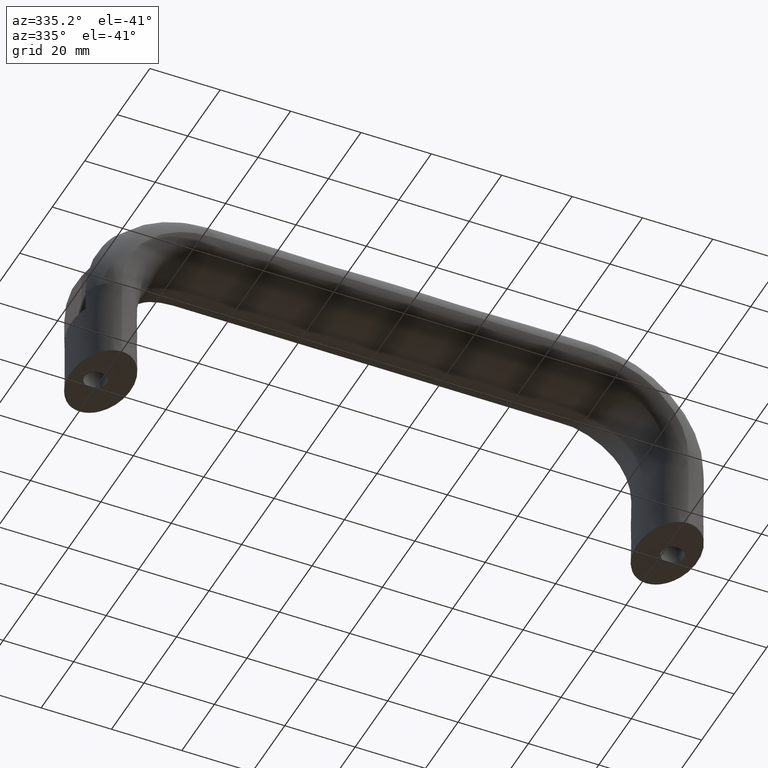
[diagram: clean part render]
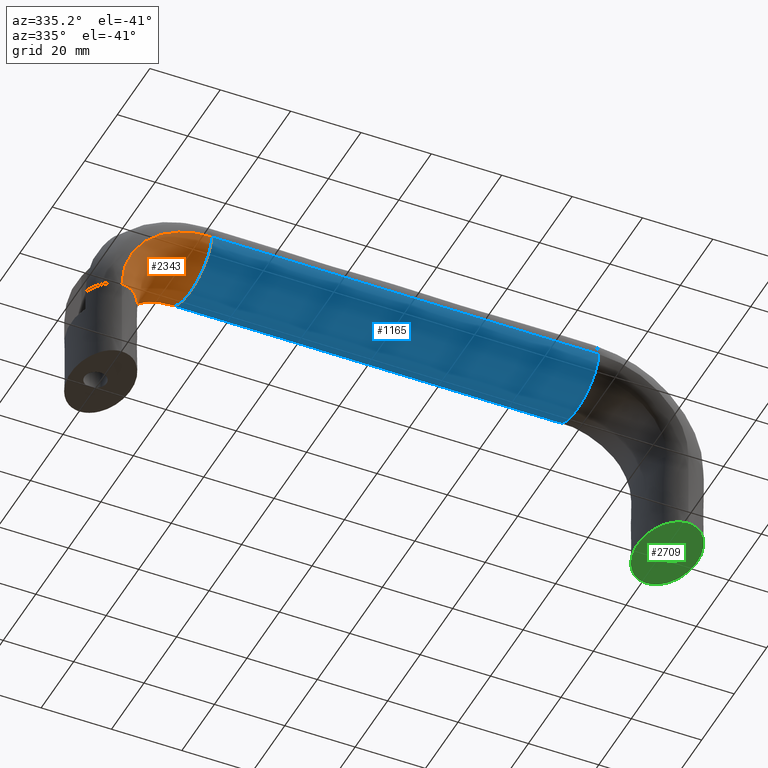
[diagram: same view with three faces highlighted in distinct colors, each labeled with its STEP entity id]
A machine part, auxiliary view with three faces highlighted in distinct colors.
Their STEP definitions:

[orange] entity #2343 — the highlighted face is a freeform B-spline surface patch.
#1004=CARTESIAN_POINT('',(27.0,10.975623890149990,43.945765449547203));
#1005=VERTEX_POINT('',#1004);
#1013=CARTESIAN_POINT('',(27.0,13.0,48.499999999999851));
#1014=VERTEX_POINT('',#1013);
#1015=CARTESIAN_POINT('',(27.0,10.975623890149990,43.945765449547203));
#1016=CARTESIAN_POINT('',(27.0,11.376905334614770,44.359070101473321));
#1017=CARTESIAN_POINT('',(27.0,11.723903875047570,44.794896195742687));
#1018=CARTESIAN_POINT('',(27.0,12.661644796688099,46.275142982946001));
#1019=CARTESIAN_POINT('',(27.0,13.0,47.387352601853507));
#1020=CARTESIAN_POINT('',(27.0,13.0,48.499999999999851));
#1021=B_SPLINE_CURVE_WITH_KNOTS('',3,(#1015,#1016,#1017,#1018,#1019,#1020),.UNSPECIFIED.,.F.,.U.,(4,2,4),(0.410000262681718,0.437500000000000,0.500000000000000),.UNSPECIFIED.);
#1022=EDGE_CURVE('',#1005,#1014,#1021,.T.);
#1024=CARTESIAN_POINT('',(27.0,11.762630262052349,52.119074295047028));
#1025=VERTEX_POINT('',#1024);
#1026=CARTESIAN_POINT('',(27.0,13.0,48.499999999999851));
#1027=CARTESIAN_POINT('',(27.0,13.0,49.612647398146201));
#1028=CARTESIAN_POINT('',(27.0,12.661644796688099,50.724857017053687));
#1029=CARTESIAN_POINT('',(27.0,11.932288617735150,51.876163434111042));
#1030=CARTESIAN_POINT('',(27.0,11.849645570403720,51.998292737369773));
#1031=CARTESIAN_POINT('',(27.0,11.762630262052349,52.119074295047028));
#1032=B_SPLINE_CURVE_WITH_KNOTS('',3,(#1026,#1027,#1028,#1029,#1030,#1031),.UNSPECIFIED.,.F.,.U.,(4,2,4),(0.500000000000000,0.562500000000000,0.570000000002555),.UNSPECIFIED.);
#1033=EDGE_CURVE('',#1014,#1025,#1032,.T.);
#1035=CARTESIAN_POINT('',(27.0,-13.0,48.499999999999851));
#1036=VERTEX_POINT('',#1035);
#1147=CARTESIAN_POINT('',(27.0,-13.0,48.499999999999851));
#1148=CARTESIAN_POINT('',(27.0,-13.0,47.387352601853507));
#1149=CARTESIAN_POINT('',(27.0,-12.661644796688099,46.275142982946001));
#1150=CARTESIAN_POINT('',(27.0,-11.359223048605340,44.219238666847197));
#1151=CARTESIAN_POINT('',(27.0,-10.395668951176340,43.276352880213047));
#1152=CARTESIAN_POINT('',(27.0,-6.785826563922671,40.916071319316451));
#1153=CARTESIAN_POINT('',(27.0,-3.403392041388941,40.0));
#1154=CARTESIAN_POINT('',(27.0,3.403392041388945,40.0));
#1155=CARTESIAN_POINT('',(27.0,6.785826563922680,40.916071319316451));
#1156=CARTESIAN_POINT('',(27.0,9.866230458323667,42.930181557963273));
#1157=CARTESIAN_POINT('',(27.0,10.464893340169100,43.419732374459457));
#1158=CARTESIAN_POINT('',(27.0,10.975623890149990,43.945765449547203));
#1159=B_SPLINE_CURVE_WITH_KNOTS('',3,(#1147,#1148,#1149,#1150,#1151,#1152,#1153,#1154,#1155,#1156,#1157,#1158),.UNSPECIFIED.,.F.,.U.,(4,2,2,2,2,4),(0.0,0.062500000000000,0.125000000000000,0.250000000000000,0.375000000000000,0.410000262681718),.UNSPECIFIED.);
#1160=EDGE_CURVE('',#1036,#1005,#1159,.T.);
#1962=CARTESIAN_POINT('',(-2.119061428359717,11.762639531628810,23.0));
#1963=VERTEX_POINT('',#1962);
#2082=CARTESIAN_POINT('',(1.500000000000140,-13.0,23.0));
#2083=VERTEX_POINT('',#2082);
#2095=CARTESIAN_POINT('',(1.500000000000154,-13.0,23.0));
#2096=CARTESIAN_POINT('',(1.500032745947582,-13.0,26.338487934503370));
#2097=CARTESIAN_POINT('',(2.163696795463587,-13.0,29.674571173098371));
#2098=CARTESIAN_POINT('',(4.718447046461086,-13.0,35.842283877520977));
#2099=CARTESIAN_POINT('',(6.608495612153591,-13.0,38.670941452671578));
#2100=CARTESIAN_POINT('',(11.329058547332741,-13.0,43.391504387842048));
#2101=CARTESIAN_POINT('',(14.157716122458790,-13.0,45.281552953521953));
#2102=CARTESIAN_POINT('',(20.325428826921950,-13.0,47.836303204553452));
#2103=CARTESIAN_POINT('',(23.661512065481379,-13.0,48.499967254052613));
#2104=CARTESIAN_POINT('',(27.0,-13.0,48.499999999999851));
#2105=B_SPLINE_CURVE_WITH_KNOTS('',3,(#2095,#2096,#2097,#2098,#2099,#2100,#2101,#2102,#2103,#2104),.UNSPECIFIED.,.F.,.U.,(4,2,2,2,4),(0.097411970348334,0.139823560705181,0.182235151062028,0.224646741418875,0.267058331775723),.UNSPECIFIED.);
#2106=EDGE_CURVE('',#2083,#1036,#2105,.T.);
#2109=CARTESIAN_POINT('',(-2.119061428359717,11.762639531628810,23.0));
#2110=CARTESIAN_POINT('',(-2.119022407721757,11.762638924830910,26.812301103459479));
#2111=CARTESIAN_POINT('',(-1.361171660239219,11.762638197851629,30.621856230460349));
#2112=CARTESIAN_POINT('',(1.556157996607505,11.762636612488160,37.664918366565928));
#2113=CARTESIAN_POINT('',(3.714449535768110,11.762635754833109,40.895031703267279));
#2114=CARTESIAN_POINT('',(9.104973539139522,11.762634038848050,46.285558088512403));
#2115=CARTESIAN_POINT('',(12.335085685348011,11.762633181192999,48.443850818134713));
#2116=CARTESIAN_POINT('',(19.378145620912111,11.762631595829530,51.361182675585340));
#2117=CARTESIAN_POINT('',(23.187699738797981,11.762630868850250,52.119034432141987));
#2118=CARTESIAN_POINT('',(27.0,11.762630262052349,52.119074295047028));
#2119=B_SPLINE_CURVE_WITH_KNOTS('',3,(#2109,#2110,#2111,#2112,#2113,#2114,#2115,#2116,#2117,#2118),.UNSPECIFIED.,.F.,.U.,(4,2,2,2,4),(0.097411970348334,0.139823560705181,0.182235151062028,0.224646741418875,0.267058331775723),.UNSPECIFIED.);
#2120=EDGE_CURVE('',#1963,#1025,#2119,.T.);
#2125=CARTESIAN_POINT('',(1.500000000000154,-13.0,23.0));
#2126=CARTESIAN_POINT('',(2.612647398146540,-13.0,23.0));
#2127=CARTESIAN_POINT('',(3.724857017054041,-12.661644796688099,23.0));
#2128=CARTESIAN_POINT('',(5.780761333152801,-11.359223048605340,23.0));
#2129=CARTESIAN_POINT('',(6.723647119786929,-10.395668951176340,23.0));
#2130=CARTESIAN_POINT('',(9.083928680683561,-6.785826563922671,23.0));
#2131=CARTESIAN_POINT('',(10.000000000000140,-3.403392041388941,23.0));
#2132=CARTESIAN_POINT('',(10.000000000000140,3.403392041388945,23.0));
#2133=CARTESIAN_POINT('',(9.083928680683561,6.785826563922680,23.0));
#2134=CARTESIAN_POINT('',(6.723647119786921,10.395668951176340,23.0));
#2135=CARTESIAN_POINT('',(5.780761333152801,11.359223048605340,23.0));
#2136=CARTESIAN_POINT('',(3.724857017054035,12.661644796688099,23.0));
#2137=CARTESIAN_POINT('',(2.612647398146535,13.0,23.0));
#2138=CARTESIAN_POINT('',(0.387352601853766,13.0,23.0));
#2139=CARTESIAN_POINT('',(-0.724857017053728,12.661644796688099,23.0));
#2140=CARTESIAN_POINT('',(-1.876163434069034,11.932288617761770,23.0));
#2141=CARTESIAN_POINT('',(-1.998292737286579,11.849645570460019,23.0));
#2142=CARTESIAN_POINT('',(-2.119074294985324,11.762630262096810,23.0));
#2143=CARTESIAN_POINT('',(1.500032745947582,-13.0,26.338487934503370));
#2144=CARTESIAN_POINT('',(2.612678002240540,-13.0,26.192818918935149));
#2145=CARTESIAN_POINT('',(3.724885529003480,-12.661644796688099,26.047207217867751));
#2146=CARTESIAN_POINT('',(5.780786073438320,-11.359223048605340,25.778045973692102));
#2147=CARTESIAN_POINT('',(6.723670175547071,-10.395668951176340,25.654602334049951));
#2148=CARTESIAN_POINT('',(9.083947659808640,-6.785826563922671,25.345591687459152));
#2149=CARTESIAN_POINT('',(10.000017456216780,-3.403392041388941,25.225658627134049));
#2150=CARTESIAN_POINT('',(10.000017456216780,3.403392041388945,25.225658627134049));
#2151=CARTESIAN_POINT('',(9.083947659808640,6.785826563922680,25.345591687459152));
#2152=CARTESIAN_POINT('',(6.723670175547071,10.395668951176340,25.654602334050001));
#2153=CARTESIAN_POINT('',(5.780786073438311,11.359223048605340,25.778045973687750));
#2154=CARTESIAN_POINT('',(3.724885529002785,12.661644796688099,26.047207217867751));
#2155=CARTESIAN_POINT('',(2.612678002240535,13.0,26.192818918935149));
#2156=CARTESIAN_POINT('',(0.387387489654623,13.0,26.484156950071601));
#2157=CARTESIAN_POINT('',(-0.724819943463048,12.661644796688099,26.629768651049350));
#2158=CARTESIAN_POINT('',(-1.876124058144919,11.932288617761770,26.780498947608201));
#2159=CARTESIAN_POINT('',(-1.998253116722651,11.849645570460019,26.796488249691439));
#2160=CARTESIAN_POINT('',(-2.119034432082197,11.762630262096810,26.812301103455439));
#2161=CARTESIAN_POINT('',(2.163696795463587,-13.0,29.674571173098371));
#2162=CARTESIAN_POINT('',(3.247384957820375,-13.0,29.383338065282651));
#2163=CARTESIAN_POINT('',(4.330646735161695,-12.661644796688099,29.092219545244848));
#2164=CARTESIAN_POINT('',(6.333041360813120,-11.359223048605340,28.554090930228750));
#2165=CARTESIAN_POINT('',(7.251386352343620,-10.395668951176340,28.307292565875851));
#2166=CARTESIAN_POINT('',(9.550236097229082,-6.785826563922671,27.689493849540050));
#2167=CARTESIAN_POINT('',(10.442464530308380,-3.403392041388941,27.449714115402749));
#2168=CARTESIAN_POINT('',(10.442464530308380,3.403392041388945,27.449714115402749));
#2169=CARTESIAN_POINT('',(9.550236097229082,6.785826563922680,27.689493849540050));
#2170=CARTESIAN_POINT('',(7.251386352343610,10.395668951176340,28.307292565875851));
#2171=CARTESIAN_POINT('',(6.333041360814569,11.359223048605340,28.554090930234551));
#2172=CARTESIAN_POINT('',(4.330646735161690,12.661644796688099,29.092219545244848));
#2173=CARTESIAN_POINT('',(3.247384957820370,13.0,29.383338065282651));
#2174=CARTESIAN_POINT('',(1.080008633106800,13.0,29.965804280914099));
#2175=CARTESIAN_POINT('',(-0.003253144234151,12.661644796688099,30.256922800951902));
#2176=CARTESIAN_POINT('',(-1.124594134599558,11.932288617761770,30.558274825357639));
#2177=CARTESIAN_POINT('',(-1.243544738712080,11.849645570460019,30.590241912676859));
#2178=CARTESIAN_POINT('',(-1.361182675516854,11.762630262096810,30.621856230451471));
#2179=CARTESIAN_POINT('',(4.718447046461086,-13.0,35.842283877520977));
#2180=CARTESIAN_POINT('',(5.690663200203060,-13.0,35.281933534667203));
#2181=CARTESIAN_POINT('',(6.662496828403381,-12.661644796688099,34.721803665759047));
#2182=CARTESIAN_POINT('',(8.458918039642480,-11.359223048605340,33.686411240177350));
#2183=CARTESIAN_POINT('',(9.282798807646131,-10.395668951176340,33.211556066215500));
#2184=CARTESIAN_POINT('',(11.345180712913040,-6.785826563922671,32.022873484407349));
#2185=CARTESIAN_POINT('',(12.145631364308160,-3.403392041388941,31.561522585010099));
#2186=CARTESIAN_POINT('',(12.145631364308160,3.403392041388945,31.561522585010099));
#2187=CARTESIAN_POINT('',(11.345180712913040,6.785826563922680,32.022873484407349));
#2188=CARTESIAN_POINT('',(9.282798807646120,10.395668951176340,33.211556066215500));
#2189=CARTESIAN_POINT('',(8.458918039641020,11.359223048605340,33.686411240171552));
#2190=CARTESIAN_POINT('',(6.662496828403381,12.661644796688099,34.721803665759047));
#2191=CARTESIAN_POINT('',(5.690663200203060,13.0,35.281933534667203));
#2192=CARTESIAN_POINT('',(3.746230892719105,13.0,36.402634220374750));
#2193=CARTESIAN_POINT('',(2.774397264518435,12.661644796688099,36.962764089282949));
#2194=CARTESIAN_POINT('',(1.768401386225149,11.932288617761770,37.542583847611922));
#2195=CARTESIAN_POINT('',(1.661686463212561,11.849645570460019,37.604090482187992));
#2196=CARTESIAN_POINT('',(1.556149181891933,11.762630262096810,37.664918366546502));
#2197=CARTESIAN_POINT('',(6.608495612153591,-13.0,38.670941452671578));
#2198=CARTESIAN_POINT('',(7.498242839660080,-13.0,37.987167639578850));
#2199=CARTESIAN_POINT('',(8.387639989627301,-12.661644796688099,37.303662862276603));
#2200=CARTESIAN_POINT('',(10.031678494834599,-11.359223048605340,36.040213600724357));
#2201=CARTESIAN_POINT('',(10.785672991121199,-10.395668951176340,35.460766229784149));
#2202=CARTESIAN_POINT('',(12.673111885458640,-6.785826563922671,34.010262929685297));
#2203=CARTESIAN_POINT('',(13.405663741437699,-3.403392041388941,33.447294301788752));
#2204=CARTESIAN_POINT('',(13.405663741437699,3.403392041388945,33.447294301788752));
#2205=CARTESIAN_POINT('',(12.673111885458640,6.785826563922680,34.010262929685297));
#2206=CARTESIAN_POINT('',(10.785672991124100,10.395668951176340,35.460766229784149));
#2207=CARTESIAN_POINT('',(10.031678494831700,11.359223048605340,36.040213600712747));
#2208=CARTESIAN_POINT('',(8.387639989627301,12.661644796688099,37.303662862288199));
#2209=CARTESIAN_POINT('',(7.498242839660080,13.0,37.987167639578907));
#2210=CARTESIAN_POINT('',(5.718748384647101,13.0,39.354715265764298));
#2211=CARTESIAN_POINT('',(4.829351234678440,12.661644796688099,40.038220043054999));
#2212=CARTESIAN_POINT('',(3.908689671763977,11.932288617761770,40.745751629530758));
#2213=CARTESIAN_POINT('',(3.811026917942616,11.849645570460019,40.820805792682869));
#2214=CARTESIAN_POINT('',(3.714441911519701,11.762630262096810,40.895031703242132));
#2215=CARTESIAN_POINT('',(11.329058547332741,-13.0,43.391504387842048));
#2216=CARTESIAN_POINT('',(12.012832360423999,-13.0,42.501757160337000));
#2217=CARTESIAN_POINT('',(12.696337137717601,-12.661644796688099,41.612360010378453));
#2218=CARTESIAN_POINT('',(13.959786399278540,-11.359223048605340,39.968321505162500));
#2219=CARTESIAN_POINT('',(14.539233770218740,-10.395668951176340,39.214327008875898));
#2220=CARTESIAN_POINT('',(15.989737070320450,-6.785826563922671,37.326888114535549));
#2221=CARTESIAN_POINT('',(16.552705698219949,-3.403392041388941,36.594336258553597));
#2222=CARTESIAN_POINT('',(16.552705698219949,3.403392041388945,36.594336258553597));
#2223=CARTESIAN_POINT('',(15.989737070320450,6.785826563922680,37.326888114535549));
#2224=CARTESIAN_POINT('',(14.539233770215841,10.395668951176340,39.214327008875898));
#2225=CARTESIAN_POINT('',(13.959786399281439,11.359223048605340,39.968321505174103));
#2226=CARTESIAN_POINT('',(12.696337137717579,12.661644796688099,41.612360010366913));
#2227=CARTESIAN_POINT('',(12.012832360423999,13.0,42.501757160337000));
#2228=CARTESIAN_POINT('',(10.645284734241480,13.0,44.281251615347102));
#2229=CARTESIAN_POINT('',(9.961779956949350,12.661644796688099,45.170648765317203));
#2230=CARTESIAN_POINT('',(9.254248370473590,11.932288617761770,46.091310328231671));
#2231=CARTESIAN_POINT('',(9.179194207321523,11.849645570460019,46.188973082052982));
#2232=CARTESIAN_POINT('',(9.104968296762326,11.762630262096810,46.285558088475817));
#2233=CARTESIAN_POINT('',(14.157716122458790,-13.0,45.281552953521953));
#2234=CARTESIAN_POINT('',(14.718066465303860,-13.0,44.309336799779601));
#2235=CARTESIAN_POINT('',(15.278196334223651,-12.661644796688099,43.337503171574902));
#2236=CARTESIAN_POINT('',(16.313588759811100,-11.359223048605340,41.541081960330047));
#2237=CARTESIAN_POINT('',(16.788443933772950,-10.395668951176340,40.717201192336503));
#2238=CARTESIAN_POINT('',(17.977126515575300,-6.785826563922671,38.654819287069607));
#2239=CARTESIAN_POINT('',(18.438477414972549,-3.403392041388941,37.854368635665800));
#2240=CARTESIAN_POINT('',(18.438477414972549,3.403392041388945,37.854368635665800));
#2241=CARTESIAN_POINT('',(17.977126515575300,6.785826563922680,38.654819287069607));
#2242=CARTESIAN_POINT('',(16.788443933767201,10.395668951176340,40.717201192336503));
#2243=CARTESIAN_POINT('',(16.313588759805299,11.359223048605340,41.541081960341600));
#2244=CARTESIAN_POINT('',(15.278196334223651,12.661644796688099,43.337503171574902));
#2245=CARTESIAN_POINT('',(14.718066465309640,13.0,44.309336799767998));
#2246=CARTESIAN_POINT('',(13.597365779613719,13.0,46.253769107264297));
#2247=CARTESIAN_POINT('',(13.037235910699740,12.661644796688099,47.225602735468897));
#2248=CARTESIAN_POINT('',(12.457416152372380,11.932288617761770,48.231598613759537));
#2249=CARTESIAN_POINT('',(12.395909517796420,11.849645570460019,48.338313536771942));
#2250=CARTESIAN_POINT('',(12.335081633437980,11.762630262096810,48.443850818092429));
#2251=CARTESIAN_POINT('',(20.325428826921950,-13.0,47.836303204553452));
#2252=CARTESIAN_POINT('',(20.616661934746350,-13.0,46.752615042197000));
#2253=CARTESIAN_POINT('',(20.907780454772599,-12.661644796688099,45.669353264860000));
#2254=CARTESIAN_POINT('',(21.445909069782850,-11.359223048605340,43.666958639214400));
#2255=CARTESIAN_POINT('',(21.692707434135801,-10.395668951176340,42.748613647673743));
#2256=CARTESIAN_POINT('',(22.310506150477352,-6.785826563922671,40.449763902788298));
#2257=CARTESIAN_POINT('',(22.550285884614649,-3.403392041388941,39.557535469717699));
#2258=CARTESIAN_POINT('',(22.550285884614649,3.403392041388945,39.557535469717699));
#2259=CARTESIAN_POINT('',(22.310506150477352,6.785826563922680,40.449763902788298));
#2260=CARTESIAN_POINT('',(21.692707434141600,10.395668951176340,42.748613647673743));
#2261=CARTESIAN_POINT('',(21.445909069788652,11.359223048605340,43.666958639202797));
#2262=CARTESIAN_POINT('',(20.907780454772599,12.661644796688099,45.669353264860000));
#2263=CARTESIAN_POINT('',(20.616661934740549,13.0,46.752615042208603));
#2264=CARTESIAN_POINT('',(20.034195719097550,13.0,48.919991366909912));
#2265=CARTESIAN_POINT('',(19.743077199065549,12.661644796688099,50.003253144246798));
#2266=CARTESIAN_POINT('',(19.441725174658149,11.932288617761770,51.124594134614881));
#2267=CARTESIAN_POINT('',(19.409758087338819,11.849645570460019,51.243544738727607));
#2268=CARTESIAN_POINT('',(19.378143769564140,11.762630262096810,51.361182675532511));
#2269=CARTESIAN_POINT('',(23.661512065481379,-13.0,48.499967254052613));
#2270=CARTESIAN_POINT('',(23.807181081043051,-13.0,47.387321997762299));
#2271=CARTESIAN_POINT('',(23.952792782119150,-12.661644796688099,46.275114471003398));
#2272=CARTESIAN_POINT('',(24.221954026299201,-11.359223048605340,44.219213926563000));
#2273=CARTESIAN_POINT('',(24.345397665941299,-10.395668951176340,43.276329824454201));
#2274=CARTESIAN_POINT('',(24.654408312527799,-6.785826563922671,40.916052340191349));
#2275=CARTESIAN_POINT('',(24.774341372852899,-3.403392041388941,39.999982543785563));
#2276=CARTESIAN_POINT('',(24.774341372852899,3.403392041388945,39.999982543785563));
#2277=CARTESIAN_POINT('',(24.654408312527799,6.785826563922680,40.916052340200942));
#2278=CARTESIAN_POINT('',(24.345397665936950,10.395668951176340,43.276329824464447));
#2279=CARTESIAN_POINT('',(24.221954026294849,11.359223048605340,44.219213926563000));
#2280=CARTESIAN_POINT('',(23.952792782119150,12.661644796688099,46.275114471003398));
#2281=CARTESIAN_POINT('',(23.807181081047400,13.0,47.387321997762299));
#2282=CARTESIAN_POINT('',(23.515843049919699,13.0,49.612612510354701));
#2283=CARTESIAN_POINT('',(23.370231348937551,12.661644796688099,50.724819943469299));
#2284=CARTESIAN_POINT('',(23.219501052379929,11.932288617761770,51.876124058147212));
#2285=CARTESIAN_POINT('',(23.203511750296780,11.849645570460019,51.998253116724761));
#2286=CARTESIAN_POINT('',(23.187698896532819,11.762630262096810,52.119034432084320));
#2287=CARTESIAN_POINT('',(27.0,-13.0,48.499999999999851));
#2288=CARTESIAN_POINT('',(27.0,-13.0,47.387352601853507));
#2289=CARTESIAN_POINT('',(27.0,-12.661644796688099,46.275142982946001));
#2290=CARTESIAN_POINT('',(27.0,-11.359223048605340,44.219238666847197));
#2291=CARTESIAN_POINT('',(27.0,-10.395668951176340,43.276352880213047));
#2292=CARTESIAN_POINT('',(27.0,-6.785826563922671,40.916071319316451));
#2293=CARTESIAN_POINT('',(27.0,-3.403392041388941,40.0));
#2294=CARTESIAN_POINT('',(27.0,3.403392041388945,40.0));
#2295=CARTESIAN_POINT('',(27.0,6.785826563922680,40.916071319316451));
#2296=CARTESIAN_POINT('',(27.0,10.395668951176340,43.276352880213103));
#2297=CARTESIAN_POINT('',(27.0,11.359223048605340,44.219238666847197));
#2298=CARTESIAN_POINT('',(27.0,12.661644796688099,46.275142982946001));
#2299=CARTESIAN_POINT('',(27.0,13.0,47.387352601853507));
#2300=CARTESIAN_POINT('',(27.0,13.0,49.612647398146201));
#2301=CARTESIAN_POINT('',(27.0,12.661644796688099,50.724857017053687));
#2302=CARTESIAN_POINT('',(27.0,11.932288617761770,51.876163434069028));
#2303=CARTESIAN_POINT('',(27.0,11.849645570460019,51.998292737286583));
#2304=CARTESIAN_POINT('',(27.0,11.762630262096810,52.119074294985317));
#2305=B_SPLINE_SURFACE_WITH_KNOTS('',3,3,((#2125,#2143,#2161,#2179,#2197,#2215,#2233,#2251,#2269,#2287),(#2126,#2144,#2162,#2180,#2198,#2216,#2234,#2252,#2270,#2288),(#2127,#2145,#2163,#2181,#2199,#2217,#2235,#2253,#2271,#2289),(#2128,#2146,#2164,#2182,#2200,#2218,#2236,#2254,#2272,#2290),(#2129,#2147,#2165,#2183,#2201,#2219,#2237,#2255,#2273,#2291),(#2130,#2148,#2166,#2184,#2202,#2220,#2238,#2256,#2274,#2292),(#2131,#2149,#2167,#2185,#2203,#2221,#2239,#2257,#2275,#2293),(#2132,#2150,#2168,#2186,#2204,#2222,#2240,#2258,#2276,#2294),(#2133,#2151,#2169,#2187,#2205,#2223,#2241,#2259,#2277,#2295),(#2134,#2152,#2170,#2188,#2206,#2224,#2242,#2260,#2278,#2296),(#2135,#2153,#2171,#2189,#2207,#2225,#2243,#2261,#2279,#2297),(#2136,#2154,#2172,#2190,#2208,#2226,#2244,#2262,#2280,#2298),(#2137,#2155,#2173,#2191,#2209,#2227,#2245,#2263,#2281,#2299),(#2138,#2156,#2174,#2192,#2210,#2228,#2246,#2264,#2282,#2300),(#2139,#2157,#2175,#2193,#2211,#2229,#2247,#2265,#2283,#2301),(#2140,#2158,#2176,#2194,#2212,#2230,#2248,#2266,#2284,#2302),(#2141,#2159,#2177,#2195,#2213,#2231,#2249,#2267,#2285,#2303),(#2142,#2160,#2178,#2196,#2214,#2232,#2250,#2268,#2286,#2304)),.UNSPECIFIED.,.F.,.F.,.U.,(4,2,2,2,2,2,2,2,4),(4,2,2,2,4),(0.0,5.001747763449061,10.003495526898121,20.006991053796249,30.010486580694369,35.012234344143430,40.013982107592490,45.015729871041550,45.615939602655438),(0.0,11.436903311026679,22.873806622053351,34.310709933080012,45.747613244106802),.UNSPECIFIED.);
#2306=CARTESIAN_POINT('',(6.495902657473526,-10.516608837180710,23.0));
#2307=VERTEX_POINT('',#2306);
#2308=CARTESIAN_POINT('',(6.495902657473526,-10.516608837180710,23.0));
#2309=CARTESIAN_POINT('',(6.856019181625992,-10.116656519782090,23.0));
#2310=CARTESIAN_POINT('',(7.195703432148245,-9.673700473447193,23.0));
#2311=CARTESIAN_POINT('',(9.083928680683512,-6.785826563922671,23.0));
#2312=CARTESIAN_POINT('',(10.0,-3.403392041388941,23.0));
#2313=CARTESIAN_POINT('',(10.0,3.403392041388945,23.0));
#2314=CARTESIAN_POINT('',(9.083928680683501,6.785826563922680,23.0));
#2315=CARTESIAN_POINT('',(6.723647119786870,10.395668951176340,23.0));
#2316=CARTESIAN_POINT('',(5.780761333152750,11.359223048605340,23.0));
#2317=CARTESIAN_POINT('',(3.724857017053985,12.661644796688099,23.0));
#2318=CARTESIAN_POINT('',(2.612647398146485,13.0,23.0));
#2319=CARTESIAN_POINT('',(0.387352601853713,13.0,23.0));
#2320=CARTESIAN_POINT('',(-0.724857017053780,12.661644796688099,23.0));
#2321=CARTESIAN_POINT('',(-1.876159053843908,11.932291392647979,23.0));
#2322=CARTESIAN_POINT('',(-1.998284063829406,11.849651439650270,23.0));
#2323=CARTESIAN_POINT('',(-2.119061428359717,11.762639531628810,23.0));
#2324=B_SPLINE_CURVE_WITH_KNOTS('',3,(#2308,#2309,#2310,#2311,#2312,#2313,#2314,#2315,#2316,#2317,#2318,#2319,#2320,#2321,#2322,#2323),.UNSPECIFIED.,.F.,.U.,(4,2,2,2,2,2,2,4),(0.319975003088040,0.349979169228031,0.500000000014765,0.650020830801498,0.725031246194865,0.800041661588232,0.875052076981599,0.884053007200591),.UNSPECIFIED.);
#2325=EDGE_CURVE('',#2307,#1963,#2324,.T.);
#2326=ORIENTED_EDGE('',*,*,#2325,.T.);
#2327=ORIENTED_EDGE('',*,*,#2120,.T.);
#2328=ORIENTED_EDGE('',*,*,#1033,.F.);
#2329=ORIENTED_EDGE('',*,*,#1022,.F.);
#2330=ORIENTED_EDGE('',*,*,#1160,.F.);
#2331=ORIENTED_EDGE('',*,*,#2106,.F.);
#2332=CARTESIAN_POINT('',(1.500000000000098,-13.000000000000011,23.0));
#2333=CARTESIAN_POINT('',(2.612647398146484,-13.0,23.0));
#2334=CARTESIAN_POINT('',(3.724857017053989,-12.661644796688099,23.0));
#2335=CARTESIAN_POINT('',(5.369580470170841,-11.619707398071220,23.0));
#2336=CARTESIAN_POINT('',(5.955727871505204,-11.116537312989450,23.0));
#2337=CARTESIAN_POINT('',(6.495902657473526,-10.516608837180710,23.0));
#2338=B_SPLINE_CURVE_WITH_KNOTS('',3,(#2332,#2333,#2334,#2335,#2336,#2337),.UNSPECIFIED.,.F.,.U.,(4,2,4),(0.199958338441298,0.274968753834665,0.319975003088040),.UNSPECIFIED.);
#2339=EDGE_CURVE('',#2083,#2307,#2338,.T.);
#2340=ORIENTED_EDGE('',*,*,#2339,.T.);
#2341=EDGE_LOOP('',(#2326,#2327,#2328,#2329,#2330,#2331,#2340));
#2342=FACE_OUTER_BOUND('',#2341,.T.);
#2343=ADVANCED_FACE('',(#2342),#2305,.T.);

[blue] entity #1165 — the highlighted face is a freeform B-spline surface patch.
#991=CARTESIAN_POINT('',(137.0,10.975623890149990,43.945765449547217));
#992=VERTEX_POINT('',#991);
#1004=CARTESIAN_POINT('',(27.0,10.975623890149990,43.945765449547203));
#1005=VERTEX_POINT('',#1004);
#1006=CARTESIAN_POINT('',(27.0,10.975623890149990,43.945765449547203));
#1007=CARTESIAN_POINT('',(63.666666646508922,10.975623890149990,43.946089506428557));
#1008=CARTESIAN_POINT('',(100.333333353491300,10.975623890149990,43.946089506428613));
#1009=CARTESIAN_POINT('',(137.0,10.975623890149990,43.945765449547217));
#1010=B_SPLINE_CURVE_WITH_KNOTS('',3,(#1006,#1007,#1008,#1009),.UNSPECIFIED.,.F.,.U.,(4,4),(0.267058331775723,0.732941668224278),.UNSPECIFIED.);
#1011=EDGE_CURVE('',#1005,#992,#1010,.T.);
#1035=CARTESIAN_POINT('',(27.0,-13.0,48.499999999999851));
#1036=VERTEX_POINT('',#1035);
#1052=CARTESIAN_POINT('',(137.0,-13.0,48.499999999999893));
#1053=VERTEX_POINT('',#1052);
#1054=CARTESIAN_POINT('',(27.0,-13.0,48.499999999999851));
#1055=CARTESIAN_POINT('',(63.666666641889357,-13.0,48.500359306904713));
#1056=CARTESIAN_POINT('',(100.333333358110810,-13.0,48.500359306904741));
#1057=CARTESIAN_POINT('',(137.0,-13.0,48.499999999999908));
#1058=B_SPLINE_CURVE_WITH_KNOTS('',3,(#1054,#1055,#1056,#1057),.UNSPECIFIED.,.F.,.U.,(4,4),(0.267058331775723,0.732941668224278),.UNSPECIFIED.);
#1059=EDGE_CURVE('',#1036,#1053,#1058,.T.);
#1081=CARTESIAN_POINT('',(26.450000012666710,-13.0,48.609479170490943));
#1082=CARTESIAN_POINT('',(26.450000012650008,-13.021880978443869,47.460486768072343));
#1083=CARTESIAN_POINT('',(26.450000012615849,-12.354651790903830,45.193466440400883));
#1084=CARTESIAN_POINT('',(26.450000012585249,-10.395616067896199,43.276265658845197));
#1085=CARTESIAN_POINT('',(26.450000012546731,-6.785826563922671,40.916066869045501));
#1086=CARTESIAN_POINT('',(26.450000012531429,-3.403392041388941,39.999995686257762));
#1087=CARTESIAN_POINT('',(26.450000012531429,3.403436455794222,39.999906738431520));
#1088=CARTESIAN_POINT('',(26.450000012551300,7.788122258346867,41.188123033383143));
#1089=CARTESIAN_POINT('',(26.450000012588479,10.534205328862219,43.478276817590512));
#1090=CARTESIAN_POINT('',(26.450000012597290,11.065366157836280,44.038191370159019));
#1091=CARTESIAN_POINT('',(63.483333311919729,-13.0,48.609846459900332));
#1092=CARTESIAN_POINT('',(63.483333313061742,-13.021880978443869,47.460845835911712));
#1093=CARTESIAN_POINT('',(63.483333315397353,-12.354651790903819,45.193808075735987));
#1094=CARTESIAN_POINT('',(63.483333317486753,-10.395616067896210,43.276590485160924));
#1095=CARTESIAN_POINT('',(63.483333320120060,-6.785826563922671,40.916369494766208));
#1096=CARTESIAN_POINT('',(63.483333321165887,-3.403392041388941,40.000289027802658));
#1097=CARTESIAN_POINT('',(63.483333321166207,3.403436455794222,40.000200074116748));
#1098=CARTESIAN_POINT('',(63.483333319808111,7.788122258346867,41.188428445717904));
#1099=CARTESIAN_POINT('',(63.483333317267373,10.534205328862219,43.478603388528938));
#1100=CARTESIAN_POINT('',(63.483333316664883,11.065366157836269,44.038522717387352));
#1101=CARTESIAN_POINT('',(100.516666688080410,-13.0,48.609846459786510));
#1102=CARTESIAN_POINT('',(100.516666686938510,-13.021880978443869,47.460845835800420));
#1103=CARTESIAN_POINT('',(100.516666684603290,-12.354651790903830,45.193808075630180));
#1104=CARTESIAN_POINT('',(100.516666682513400,-10.395616067896210,43.276590485060282));
#1105=CARTESIAN_POINT('',(100.516666679880200,-6.785826563922671,40.916369494672423));
#1106=CARTESIAN_POINT('',(100.516666678834300,-3.403392041388941,40.000289027711787));
#1107=CARTESIAN_POINT('',(100.516666678834000,3.403436455794222,40.000200074025877));
#1108=CARTESIAN_POINT('',(100.516666680192200,7.788122258346867,41.188428445623323));
#1109=CARTESIAN_POINT('',(100.516666682732700,10.534205328862219,43.478603388427757));
#1110=CARTESIAN_POINT('',(100.516666683335400,11.065366157836269,44.038522717284692));
#1111=CARTESIAN_POINT('',(137.549999987333310,-13.0,48.609479170491007));
#1112=CARTESIAN_POINT('',(137.549999987349990,-13.021880978443869,47.460486768072343));
#1113=CARTESIAN_POINT('',(137.549999987384210,-12.354651790903830,45.193466440400911));
#1114=CARTESIAN_POINT('',(137.549999987414790,-10.395616067896199,43.276265658845247));
#1115=CARTESIAN_POINT('',(137.549999987453300,-6.785826563922671,40.916066869045551));
#1116=CARTESIAN_POINT('',(137.549999987468600,-3.403392041388941,39.999995686257762));
#1117=CARTESIAN_POINT('',(137.549999987468600,3.403436455794222,39.999906738431520));
#1118=CARTESIAN_POINT('',(137.549999987448700,7.788122258346867,41.188123033383206));
#1119=CARTESIAN_POINT('',(137.549999987411610,10.534205328862219,43.478276817590512));
#1120=CARTESIAN_POINT('',(137.549999987402710,11.065366157836280,44.038191370159048));
#1121=B_SPLINE_SURFACE_WITH_KNOTS('',3,3,((#1081,#1091,#1101,#1111),(#1082,#1092,#1102,#1112),(#1083,#1093,#1103,#1113),(#1084,#1094,#1104,#1114),(#1085,#1095,#1105,#1115),(#1086,#1096,#1106,#1116),(#1087,#1097,#1107,#1117),(#1088,#1098,#1108,#1118),(#1089,#1099,#1109,#1119),(#1090,#1100,#1110,#1120)),.UNSPECIFIED.,.F.,.F.,.U.,(4,1,2,2,1,4),(4,4),(0.0,5.165818982563476,10.167580099063080,20.171102332062290,30.174624565061510,33.139689678295518),(0.0,111.100000000909700),.UNSPECIFIED.);
#1122=CARTESIAN_POINT('',(137.0,-10.516608837180710,43.504097342526421));
#1123=VERTEX_POINT('',#1122);
#1124=CARTESIAN_POINT('',(137.0,-10.516608837180710,43.504097342526421));
#1125=CARTESIAN_POINT('',(137.0,-10.116656519782090,43.143980818373947));
#1126=CARTESIAN_POINT('',(137.0,-9.673700473447195,42.804296567851686));
#1127=CARTESIAN_POINT('',(137.0,-6.785826563922671,40.916071319316451));
#1128=CARTESIAN_POINT('',(137.0,-3.403392041388941,40.0));
#1129=CARTESIAN_POINT('',(137.0,3.403392041388945,40.0));
#1130=CARTESIAN_POINT('',(137.0,6.785826563922680,40.916071319316451));
#1131=CARTESIAN_POINT('',(137.0,9.866230458323674,42.930181557963280));
#1132=CARTESIAN_POINT('',(137.0,10.464893340169111,43.419732374459478));
#1133=CARTESIAN_POINT('',(137.0,10.975623890149990,43.945765449547217));
#1134=B_SPLINE_CURVE_WITH_KNOTS('',3,(#1124,#1125,#1126,#1127,#1128,#1129,#1130,#1131,#1132,#1133),.UNSPECIFIED.,.F.,.U.,(4,2,2,2,4),(0.100000000014461,0.125000000000000,0.250000000000000,0.375000000000000,0.410000262681718),.UNSPECIFIED.);
#1135=EDGE_CURVE('',#1123,#992,#1134,.T.);
#1136=ORIENTED_EDGE('',*,*,#1135,.F.);
#1137=CARTESIAN_POINT('',(137.0,-13.0,48.499999999999851));
#1138=CARTESIAN_POINT('',(137.0,-13.0,47.387352601853507));
#1139=CARTESIAN_POINT('',(137.0,-12.661644796688099,46.275142982946001));
#1140=CARTESIAN_POINT('',(137.0,-11.619707398071220,44.630419529829119));
#1141=CARTESIAN_POINT('',(137.0,-11.116537312989440,44.044272128494740));
#1142=CARTESIAN_POINT('',(137.0,-10.516608837180710,43.504097342526421));
#1143=B_SPLINE_CURVE_WITH_KNOTS('',3,(#1137,#1138,#1139,#1140,#1141,#1142),.UNSPECIFIED.,.F.,.U.,(4,2,4),(0.0,0.062500000000000,0.100000000014461),.UNSPECIFIED.);
#1144=EDGE_CURVE('',#1053,#1123,#1143,.T.);
#1145=ORIENTED_EDGE('',*,*,#1144,.F.);
#1146=ORIENTED_EDGE('',*,*,#1059,.F.);
#1147=CARTESIAN_POINT('',(27.0,-13.0,48.499999999999851));
#1148=CARTESIAN_POINT('',(27.0,-13.0,47.387352601853507));
#1149=CARTESIAN_POINT('',(27.0,-12.661644796688099,46.275142982946001));
#1150=CARTESIAN_POINT('',(27.0,-11.359223048605340,44.219238666847197));
#1151=CARTESIAN_POINT('',(27.0,-10.395668951176340,43.276352880213047));
#1152=CARTESIAN_POINT('',(27.0,-6.785826563922671,40.916071319316451));
#1153=CARTESIAN_POINT('',(27.0,-3.403392041388941,40.0));
#1154=CARTESIAN_POINT('',(27.0,3.403392041388945,40.0));
#1155=CARTESIAN_POINT('',(27.0,6.785826563922680,40.916071319316451));
#1156=CARTESIAN_POINT('',(27.0,9.866230458323667,42.930181557963273));
#1157=CARTESIAN_POINT('',(27.0,10.464893340169100,43.419732374459457));
#1158=CARTESIAN_POINT('',(27.0,10.975623890149990,43.945765449547203));
#1159=B_SPLINE_CURVE_WITH_KNOTS('',3,(#1147,#1148,#1149,#1150,#1151,#1152,#1153,#1154,#1155,#1156,#1157,#1158),.UNSPECIFIED.,.F.,.U.,(4,2,2,2,2,4),(0.0,0.062500000000000,0.125000000000000,0.250000000000000,0.375000000000000,0.410000262681718),.UNSPECIFIED.);
#1160=EDGE_CURVE('',#1036,#1005,#1159,.T.);
#1161=ORIENTED_EDGE('',*,*,#1160,.T.);
#1162=ORIENTED_EDGE('',*,*,#1011,.T.);
#1163=EDGE_LOOP('',(#1136,#1145,#1146,#1161,#1162));
#1164=FACE_OUTER_BOUND('',#1163,.T.);
#1165=ADVANCED_FACE('',(#1164),#1121,.T.);

[green] entity #2709 — the highlighted face is a freeform B-spline surface patch.
#451=CARTESIAN_POINT('',(163.752853163612510,-3.140289547360735,-5.551115E-017));
#452=VERTEX_POINT('',#451);
#458=CARTESIAN_POINT('',(160.849999999999990,1.421085E-014,0.0));
#459=VERTEX_POINT('',#458);
#460=CARTESIAN_POINT('',(160.849999999999990,1.421085E-014,0.0));
#461=CARTESIAN_POINT('',(160.850000000000080,-2.911828774753220,0.0));
#462=CARTESIAN_POINT('',(163.752853163612570,-3.140289547360736,-5.551115E-017));
#470=(BOUNDED_CURVE()B_SPLINE_CURVE(2,(#460,#461,#462),.UNSPECIFIED.,.F.,.U.)B_SPLINE_CURVE_WITH_KNOTS((3,3),(0.0,0.236331225863128),.UNSPECIFIED.)CURVE()GEOMETRIC_REPRESENTATION_ITEM()RATIONAL_B_SPLINE_CURVE((1.0,0.723120746203278,0.969723200133335))REPRESENTATION_ITEM(''));
#471=EDGE_CURVE('',#459,#452,#470,.T.);
#473=CARTESIAN_POINT('',(164.247146836387490,3.140289547360764,-5.551115E-017));
#474=VERTEX_POINT('',#473);
#475=CARTESIAN_POINT('',(164.247146836387510,3.140289547360764,-5.551115E-017));
#476=CARTESIAN_POINT('',(164.123764525097100,3.150000000000015,0.0));
#477=CARTESIAN_POINT('',(164.0,3.150000000000014,0.0));
#478=CARTESIAN_POINT('',(160.850000000000020,3.150000000000014,0.0));
#479=CARTESIAN_POINT('',(160.849999999999990,1.421085E-014,0.0));
#487=(BOUNDED_CURVE()B_SPLINE_CURVE(2,(#475,#476,#477,#478,#479),.UNSPECIFIED.,.F.,.U.)B_SPLINE_CURVE_WITH_KNOTS((3,2,3),(0.736331225863128,0.750000000000000,1.0),.UNSPECIFIED.)CURVE()GEOMETRIC_REPRESENTATION_ITEM()RATIONAL_B_SPLINE_CURVE((0.969723200133335,0.983986034983270,1.0,0.707106781186548,1.0))REPRESENTATION_ITEM(''));
#488=EDGE_CURVE('',#474,#459,#487,.T.);
#564=CARTESIAN_POINT('',(167.150000000000010,1.421085E-014,0.0));
#565=VERTEX_POINT('',#564);
#566=CARTESIAN_POINT('',(167.150000000000010,1.421085E-014,0.0));
#567=CARTESIAN_POINT('',(167.150000000000060,2.911828774753269,0.0));
#568=CARTESIAN_POINT('',(164.247146836387510,3.140289547360764,-5.551115E-017));
#576=(BOUNDED_CURVE()B_SPLINE_CURVE(2,(#566,#567,#568),.UNSPECIFIED.,.F.,.U.)B_SPLINE_CURVE_WITH_KNOTS((3,3),(0.500000000000000,0.736331225863129),.UNSPECIFIED.)CURVE()GEOMETRIC_REPRESENTATION_ITEM()RATIONAL_B_SPLINE_CURVE((1.0,0.723120746203276,0.969723200133338))REPRESENTATION_ITEM(''));
#577=EDGE_CURVE('',#565,#474,#576,.T.);
#579=CARTESIAN_POINT('',(163.752853163612540,-3.140289547360735,-5.551115E-017));
#580=CARTESIAN_POINT('',(163.876235474902900,-3.149999999999986,0.0));
#581=CARTESIAN_POINT('',(164.0,-3.149999999999986,0.0));
#582=CARTESIAN_POINT('',(167.149999999999980,-3.149999999999986,0.0));
#583=CARTESIAN_POINT('',(167.150000000000010,1.421085E-014,0.0));
#591=(BOUNDED_CURVE()B_SPLINE_CURVE(2,(#579,#580,#581,#582,#583),.UNSPECIFIED.,.F.,.U.)B_SPLINE_CURVE_WITH_KNOTS((3,2,3),(0.236331225863128,0.250000000000000,0.500000000000000),.UNSPECIFIED.)CURVE()GEOMETRIC_REPRESENTATION_ITEM()RATIONAL_B_SPLINE_CURVE((0.969723200133335,0.983986034983270,1.0,0.707106781186548,1.0))REPRESENTATION_ITEM(''));
#592=EDGE_CURVE('',#452,#565,#591,.T.);
#1258=CARTESIAN_POINT('',(162.500000000000000,-13.0,-6.661338E-016));
#1259=VERTEX_POINT('',#1258);
#1267=CARTESIAN_POINT('',(166.119225427748890,11.762851135245620,-1.134399E-015));
#1268=VERTEX_POINT('',#1267);
#1269=CARTESIAN_POINT('',(166.119225427748890,11.762851135245620,-1.134399E-015));
#1270=CARTESIAN_POINT('',(167.456647262284490,10.803393583985320,-1.317094E-015));
#1271=CARTESIAN_POINT('',(168.510265370715500,9.192189843171386,-1.461837E-015));
#1272=CARTESIAN_POINT('',(169.705542173087590,7.364360158127642,-1.626041E-015));
#1273=CARTESIAN_POINT('',(170.352858103992900,4.974720246309320,-1.716305E-015));
#1274=CARTESIAN_POINT('',(170.999798650274410,2.586466109252267,-1.806516E-015));
#1275=CARTESIAN_POINT('',(170.999912172711500,-0.000122424296302,-1.809002E-015));
#1276=CARTESIAN_POINT('',(171.000025629316010,-2.585210970674297,-1.811486E-015));
#1277=CARTESIAN_POINT('',(170.352919460468600,-4.974963469106852,-1.725816E-015));
#1278=CARTESIAN_POINT('',(169.706188554584200,-7.363330127554797,-1.640195E-015));
#1279=CARTESIAN_POINT('',(168.510378742699690,-9.192428436096336,-1.479411E-015));
#1280=CARTESIAN_POINT('',(167.315262392175610,-11.020466033320391,-1.318720E-015));
#1281=CARTESIAN_POINT('',(165.752800141011990,-12.010446515455710,-1.107300E-015));
#1282=CARTESIAN_POINT('',(164.191322497621000,-12.999803147333759,-8.960134E-016));
#1283=CARTESIAN_POINT('',(162.500000000000000,-13.0,-6.661338E-016));
#1284=B_SPLINE_CURVE_WITH_KNOTS('',2,(#1269,#1270,#1271,#1272,#1273,#1274,#1275,#1276,#1277,#1278,#1279,#1280,#1281,#1282,#1283),.UNSPECIFIED.,.F.,.U.,(3,2,2,2,2,2,2,3),(0.139878321147073,0.250000000000000,0.375000000000000,0.500000000000000,0.625000000000000,0.750000000000000,0.875000000000000,1.0),.UNSPECIFIED.);
#1285=EDGE_CURVE('',#1268,#1259,#1284,.T.);
#1392=CARTESIAN_POINT('',(162.500000000000000,13.0,6.572236E-030));
#1393=VERTEX_POINT('',#1392);
#1394=CARTESIAN_POINT('',(162.500000000000000,13.0,6.572236E-030));
#1395=CARTESIAN_POINT('',(164.190749000270810,12.999710136311061,-4.985885E-016));
#1396=CARTESIAN_POINT('',(165.752670614694210,12.010240780391420,-1.012880E-015));
#1397=CARTESIAN_POINT('',(165.938538340173010,11.892494526727010,-1.074080E-015));
#1398=CARTESIAN_POINT('',(166.119225427748890,11.762851135245620,-1.134399E-015));
#1399=B_SPLINE_CURVE_WITH_KNOTS('',2,(#1394,#1395,#1396,#1397,#1398),.UNSPECIFIED.,.F.,.U.,(3,2,3),(0.0,0.125000000000000,0.139878321147073),.UNSPECIFIED.);
#1400=EDGE_CURVE('',#1393,#1268,#1399,.T.);
#1402=CARTESIAN_POINT('',(162.500000000000000,-12.999999999999989,1.011113E-030));
#1403=CARTESIAN_POINT('',(160.809185756169000,-12.999801080675480,2.300467E-016));
#1404=CARTESIAN_POINT('',(159.247190824896710,-12.010433922646721,4.425666E-016));
#1405=CARTESIAN_POINT('',(157.685552516527200,-11.021292649466060,6.550380E-016));
#1406=CARTESIAN_POINT('',(156.489592359914300,-9.192388155425114,8.177565E-016));
#1407=CARTESIAN_POINT('',(155.294325751856600,-7.364544260319935,9.803806E-016));
#1408=CARTESIAN_POINT('',(154.647023973654000,-4.974884620746172,1.068450E-015));
#1409=CARTESIAN_POINT('',(154.000097571871290,-2.586610767385947,1.156469E-015));
#1410=CARTESIAN_POINT('',(154.0,-2.974780E-015,1.156482E-015));
#1411=CARTESIAN_POINT('',(153.999902484711410,2.585110767291353,1.156496E-015));
#1412=CARTESIAN_POINT('',(154.647023973654000,4.974884620746177,1.068450E-015));
#1413=CARTESIAN_POINT('',(155.293770190733310,7.363272621772647,9.804562E-016));
#1414=CARTESIAN_POINT('',(156.489592359914300,9.192388155425123,8.177565E-016));
#1415=CARTESIAN_POINT('',(157.684721060532210,11.020442967714880,6.551512E-016));
#1416=CARTESIAN_POINT('',(159.247190824896710,12.010433922646740,4.425666E-016));
#1417=CARTESIAN_POINT('',(160.808675976720710,12.999801020700581,2.301160E-016));
#1418=CARTESIAN_POINT('',(162.499999999999890,13.000000000000011,1.412490E-029));
#1419=B_SPLINE_CURVE_WITH_KNOTS('',2,(#1402,#1403,#1404,#1405,#1406,#1407,#1408,#1409,#1410,#1411,#1412,#1413,#1414,#1415,#1416,#1417,#1418),.UNSPECIFIED.,.F.,.U.,(3,2,2,2,2,2,2,2,3),(0.0,0.125000000000000,0.250000000000000,0.375000000000000,0.500000000000000,0.625000000000000,0.750000000000000,0.875000000000000,1.0),.UNSPECIFIED.);
#1420=EDGE_CURVE('',#1259,#1393,#1419,.T.);
#2693=CARTESIAN_POINT('',(153.206396636318490,14.334696441804891,6.572236E-030));
#2694=CARTESIAN_POINT('',(153.095633283918890,-14.262275140116550,6.572236E-030));
#2695=CARTESIAN_POINT('',(171.903872154288990,14.262276358305961,6.572236E-030));
#2696=CARTESIAN_POINT('',(171.793108801889390,-14.334695223615491,6.572236E-030));
#2697=B_SPLINE_SURFACE_WITH_KNOTS('',1,1,((#2693,#2695),(#2694,#2696)),.UNSPECIFIED.,.F.,.F.,.U.,(2,2),(2,2),(0.0,28.597186088450339),(0.0,18.697615768156119),.UNSPECIFIED.);
#2698=ORIENTED_EDGE('',*,*,#1400,.T.);
#2699=ORIENTED_EDGE('',*,*,#1285,.T.);
#2700=ORIENTED_EDGE('',*,*,#1420,.T.);
#2701=EDGE_LOOP('',(#2698,#2699,#2700));
#2702=FACE_OUTER_BOUND('',#2701,.T.);
#2703=ORIENTED_EDGE('',*,*,#577,.T.);
#2704=ORIENTED_EDGE('',*,*,#488,.T.);
#2705=ORIENTED_EDGE('',*,*,#471,.T.);
#2706=ORIENTED_EDGE('',*,*,#592,.T.);
#2707=EDGE_LOOP('',(#2703,#2704,#2705,#2706));
#2708=FACE_BOUND('',#2707,.T.);
#2709=ADVANCED_FACE('',(#2702,#2708),#2697,.F.);